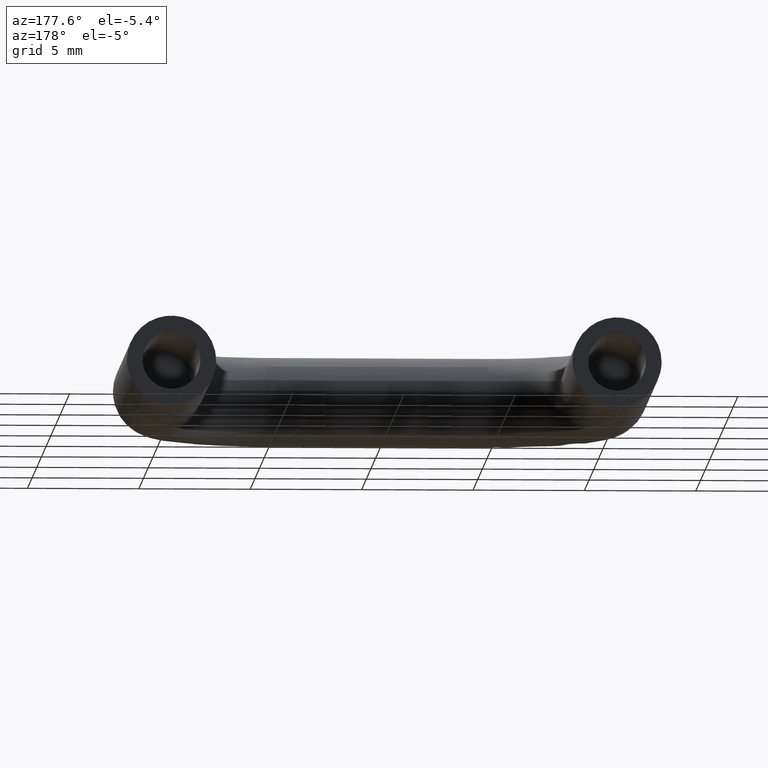
[diagram: clean part render]
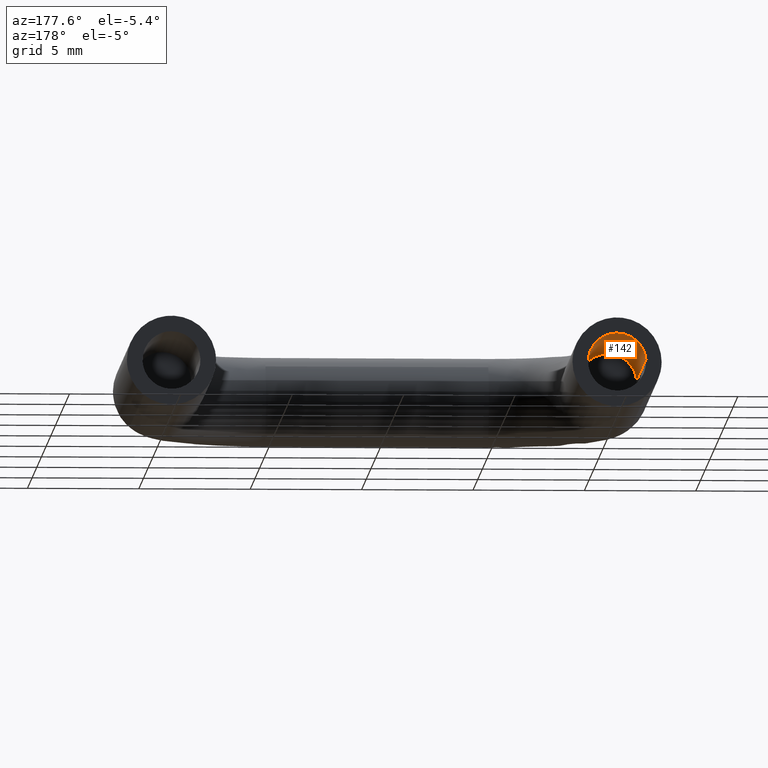
[diagram: same view with one face highlighted and labeled with its STEP entity id]
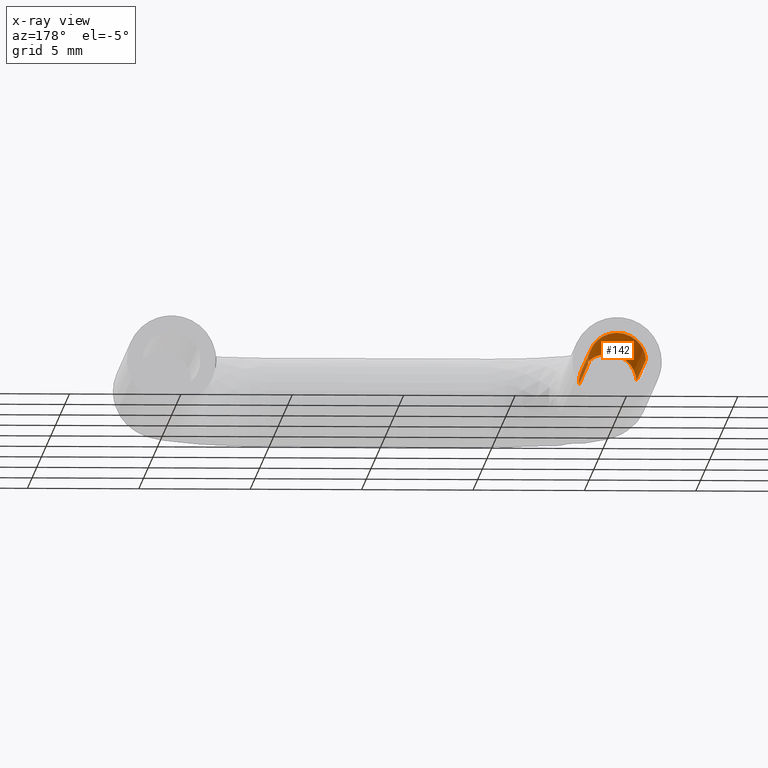
[diagram: x-ray of the same camera — body ghosted, the highlighted face saturated]
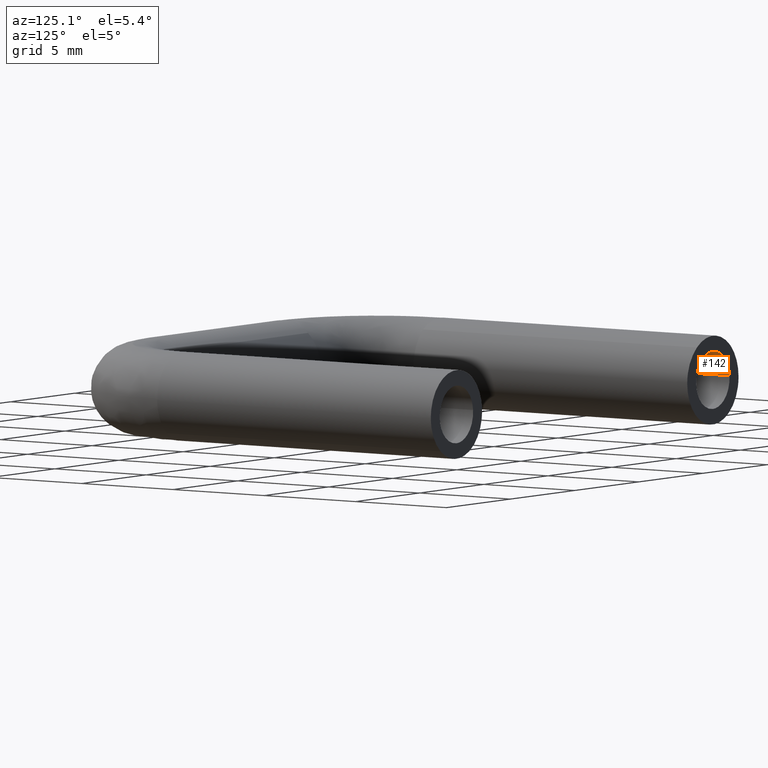
[diagram: same view with one face highlighted and labeled with its STEP entity id]
A machine part, auxiliary view. The second image highlights one B-rep face of the part: STEP entity #142.
The next image is the same camera in x-ray: the body ghosted, the highlighted face saturated — about 4% of this face is hidden behind the body in this view.
A second angle (auxiliary view) of the same face is appended — the face is thin or edge-on in the first view.
In plain terms, the highlighted face is a freeform B-spline surface patch.
Its self-contained STEP definition (entity closure, byte-faithful):
#44=CARTESIAN_POINT('',(-1.295992533853066,-10.250000000000000,0.101996824446199));
#45=CARTESIAN_POINT('',(-1.193995709406867,-10.250000000000002,1.397989358299265));
#46=CARTESIAN_POINT('',(0.101996824446199,-10.250000000000000,1.295992533853066));
#47=CARTESIAN_POINT('',(1.397989358299265,-10.250000000000002,1.193995709406867));
#48=CARTESIAN_POINT('',(1.295992533853066,-10.250000000000000,-0.101996824446199));
#49=CARTESIAN_POINT('',(-1.295992533853066,0.256250000000001,0.101996824446199));
#50=CARTESIAN_POINT('',(-1.193995709406867,0.256250000000001,1.397989358299265));
#51=CARTESIAN_POINT('',(0.101996824446199,0.256250000000001,1.295992533853066));
#52=CARTESIAN_POINT('',(1.397989358299265,0.256250000000001,1.193995709406867));
#53=CARTESIAN_POINT('',(1.295992533853066,0.256250000000001,-0.101996824446199));
#61=(BOUNDED_SURFACE()B_SPLINE_SURFACE(2,1,((#44,#49),(#45,#50),(#46,#51),(#47,#52),(#48,#53)),.UNSPECIFIED.,.F.,.F.,.U.)B_SPLINE_SURFACE_WITH_KNOTS((3,2,3),(2,2),(3.141592653589793,4.712388980384690,6.283185307179586),(0.0,10.506250000000000),.UNSPECIFIED.)GEOMETRIC_REPRESENTATION_ITEM()RATIONAL_B_SPLINE_SURFACE(((1.0,1.0),(0.707106781186548,0.707106781186548),(1.0,1.0),(0.707106781186548,0.707106781186548),(1.0,1.0)))REPRESENTATION_ITEM('')SURFACE());
#62=CARTESIAN_POINT('',(0.0,-10.0,1.300000000000000));
#63=VERTEX_POINT('',#62);
#64=CARTESIAN_POINT('',(-1.295992599121702,-10.0,0.101995995122767));
#65=VERTEX_POINT('',#64);
#66=CARTESIAN_POINT('',(0.0,-10.0,1.300000000000000));
#67=CARTESIAN_POINT('',(-1.201709181890702,-9.999999999999998,1.300000000000000));
#68=CARTESIAN_POINT('',(-1.295992599121702,-10.0,0.101995995122767));
#76=(BOUNDED_CURVE()B_SPLINE_CURVE(2,(#66,#67,#68),.UNSPECIFIED.,.F.,.U.)B_SPLINE_CURVE_WITH_KNOTS((3,3),(0.0,0.236331520026582),.UNSPECIFIED.)CURVE()GEOMETRIC_REPRESENTATION_ITEM()RATIONAL_B_SPLINE_CURVE((1.0,0.723120401569355,0.969723814030421))REPRESENTATION_ITEM(''));
#77=EDGE_CURVE('',#63,#65,#76,.T.);
#78=ORIENTED_EDGE('',*,*,#77,.T.);
#79=CARTESIAN_POINT('',(-1.295992598337483,-2.775558E-017,0.101996005087369));
#80=VERTEX_POINT('',#79);
#81=CARTESIAN_POINT('',(-1.295992599121702,-10.0,0.101995995122767));
#82=CARTESIAN_POINT('',(-1.295992598337483,-2.775558E-017,0.101996005087369));
#83=QUASI_UNIFORM_CURVE('',1,(#81,#82),.UNSPECIFIED.,.F.,.U.);
#84=EDGE_CURVE('',#65,#80,#83,.T.);
#85=ORIENTED_EDGE('',*,*,#84,.T.);
#86=CARTESIAN_POINT('',(0.0,0.0,1.300000000000000));
#87=VERTEX_POINT('',#86);
#88=CARTESIAN_POINT('',(0.0,0.0,1.300000000000000));
#89=CARTESIAN_POINT('',(-1.201709163354209,0.0,1.300000000000000));
#90=CARTESIAN_POINT('',(-1.295992598337484,-2.775558E-017,0.101996005087369));
#98=(BOUNDED_CURVE()B_SPLINE_CURVE(2,(#88,#89,#90),.UNSPECIFIED.,.F.,.U.)B_SPLINE_CURVE_WITH_KNOTS((3,3),(0.0,0.236331517390490),.UNSPECIFIED.)CURVE()GEOMETRIC_REPRESENTATION_ITEM()RATIONAL_B_SPLINE_CURVE((1.0,0.723120404657728,0.969723808529088))REPRESENTATION_ITEM(''));
#99=EDGE_CURVE('',#87,#80,#98,.T.);
#100=ORIENTED_EDGE('',*,*,#99,.F.);
#101=CARTESIAN_POINT('',(1.295992598337483,5.551115E-016,-0.101996005087369));
#102=VERTEX_POINT('',#101);
#103=CARTESIAN_POINT('',(1.295992598337484,5.551115E-016,-0.101996005087369));
#104=CARTESIAN_POINT('',(1.300000000000000,0.0,-0.051076315948816));
#105=CARTESIAN_POINT('',(1.300000000000000,0.0,0.0));
#106=CARTESIAN_POINT('',(1.300000000000000,0.0,1.300000000000000));
#107=CARTESIAN_POINT('',(0.0,0.0,1.300000000000000));
#115=(BOUNDED_CURVE()B_SPLINE_CURVE(2,(#103,#104,#105,#106,#107),.UNSPECIFIED.,.F.,.U.)B_SPLINE_CURVE_WITH_KNOTS((3,2,3),(0.736331517390490,0.750000000000000,1.0),.UNSPECIFIED.)CURVE()GEOMETRIC_REPRESENTATION_ITEM()RATIONAL_B_SPLINE_CURVE((0.969723808529088,0.983986376528820,1.0,0.707106781186548,1.0))REPRESENTATION_ITEM(''));
#116=EDGE_CURVE('',#102,#87,#115,.T.);
#117=ORIENTED_EDGE('',*,*,#116,.F.);
#118=CARTESIAN_POINT('',(1.295992599121702,-10.0,-0.101995995122767));
#119=VERTEX_POINT('',#118);
#120=CARTESIAN_POINT('',(1.295992599121702,-10.0,-0.101995995122767));
#121=CARTESIAN_POINT('',(1.295992598337483,5.551115E-016,-0.101996005087369));
#122=QUASI_UNIFORM_CURVE('',1,(#120,#121),.UNSPECIFIED.,.F.,.U.);
#123=EDGE_CURVE('',#119,#102,#122,.T.);
#124=ORIENTED_EDGE('',*,*,#123,.F.);
#125=CARTESIAN_POINT('',(1.295992599121702,-10.0,-0.101995995122767));
#126=CARTESIAN_POINT('',(1.300000000000000,-10.0,-0.051076305937973));
#127=CARTESIAN_POINT('',(1.300000000000000,-10.0,0.0));
#128=CARTESIAN_POINT('',(1.300000000000000,-10.000000000000002,1.300000000000000));
#129=CARTESIAN_POINT('',(0.0,-10.0,1.300000000000000));
#137=(BOUNDED_CURVE()B_SPLINE_CURVE(2,(#125,#126,#127,#128,#129),.UNSPECIFIED.,.F.,.U.)B_SPLINE_CURVE_WITH_KNOTS((3,2,3),(0.736331520026582,0.750000000000000,1.0),.UNSPECIFIED.)CURVE()GEOMETRIC_REPRESENTATION_ITEM()RATIONAL_B_SPLINE_CURVE((0.969723814030421,0.983986379617193,1.0,0.707106781186548,1.0))REPRESENTATION_ITEM(''));
#138=EDGE_CURVE('',#119,#63,#137,.T.);
#139=ORIENTED_EDGE('',*,*,#138,.T.);
#140=EDGE_LOOP('',(#78,#85,#100,#117,#124,#139));
#141=FACE_OUTER_BOUND('',#140,.T.);
#142=ADVANCED_FACE('',(#141),#61,.F.);